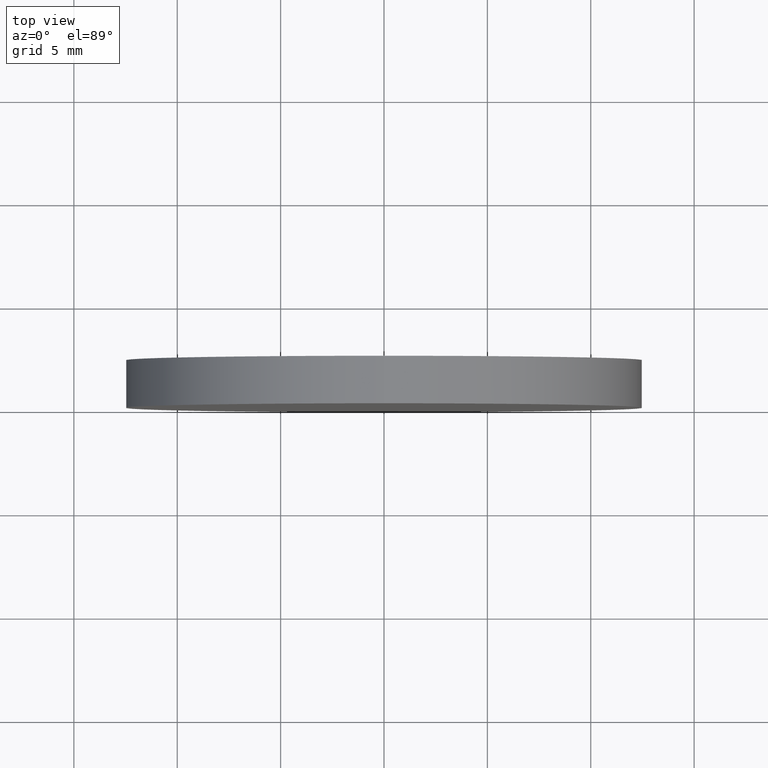
[diagram: clean part render]
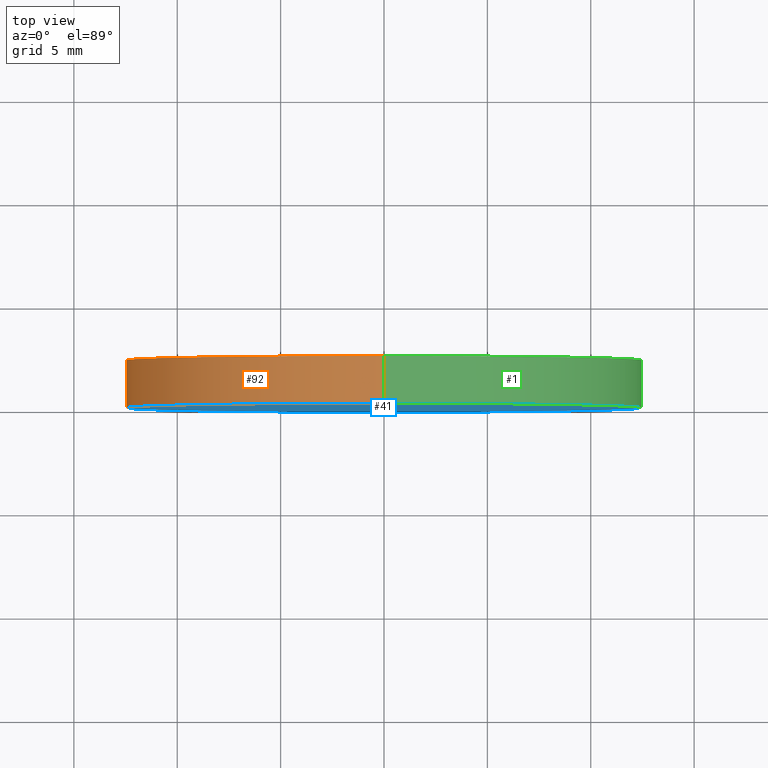
[diagram: same view with three faces highlighted in distinct colors, each labeled with its STEP entity id]
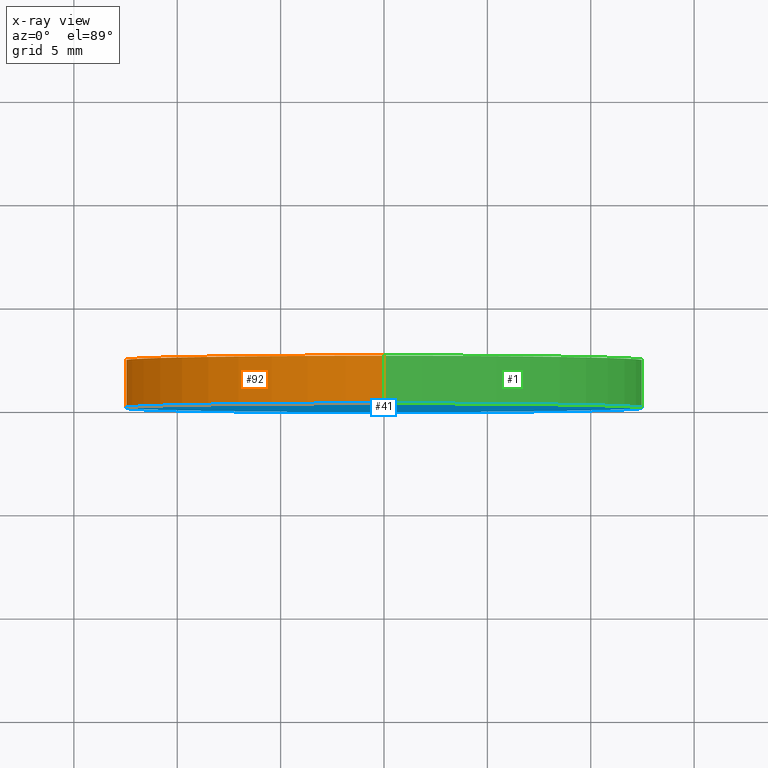
[diagram: x-ray of the same camera — body ghosted, the three highlighted faces saturated]
A machine part, top view with three faces highlighted in distinct colors.
The next image is the same camera in x-ray (body ghosted, the three faces saturated) — at least one of them is partly hidden behind the body in this view.
Their STEP definitions:

[orange] entity #92 — the highlighted cylindrical surface (partial cylindrical patch) has radius 12.5 mm, axis along (-0, -1, -0).
#14 = VERTEX_POINT ( 'NONE', #27 ) ;
#15 = EDGE_CURVE ( 'NONE', #42, #120, #85, .T. ) ;
#18 = LINE ( 'NONE', #63, #91 ) ;
#22 = ORIENTED_EDGE ( 'NONE', *, *, #15, .T. ) ;
#27 = CARTESIAN_POINT ( 'NONE',  ( 1.530808498934191500E-015, 2.299999999999999800, 12.50000000000000000 ) ) ;
#28 = VECTOR ( 'NONE', #71, 1000.000000000000000 ) ;
#32 = FACE_OUTER_BOUND ( 'NONE', #128, .T. ) ;
#42 = VERTEX_POINT ( 'NONE', #79 ) ;
#50 = DIRECTION ( 'NONE',  ( -0.0000000000000000000, -1.000000000000000000, -0.0000000000000000000 ) ) ;
#58 = CARTESIAN_POINT ( 'NONE',  ( 0.0000000000000000000, 0.0000000000000000000, -12.50000000000000000 ) ) ;
#61 = CARTESIAN_POINT ( 'NONE',  ( 1.530808498934191500E-015, 0.0000000000000000000, 12.50000000000000000 ) ) ;
#63 = CARTESIAN_POINT ( 'NONE',  ( 1.530808498934191500E-015, 2.299999999999999800, 12.50000000000000000 ) ) ;
#64 = ORIENTED_EDGE ( 'NONE', *, *, #115, .F. ) ;
#65 = DIRECTION ( 'NONE',  ( 0.0000000000000000000, 0.0000000000000000000, 1.000000000000000000 ) ) ;
#68 = EDGE_CURVE ( 'NONE', #120, #105, #75, .T. ) ;
#69 = DIRECTION ( 'NONE',  ( 0.0000000000000000000, 1.000000000000000000, 0.0000000000000000000 ) ) ;
#71 = DIRECTION ( 'NONE',  ( -0.0000000000000000000, -1.000000000000000000, -0.0000000000000000000 ) ) ;
#72 = CARTESIAN_POINT ( 'NONE',  ( 0.0000000000000000000, 2.299999999999999800, 0.0000000000000000000 ) ) ;
#75 = CIRCLE ( 'NONE', #114, 12.50000000000000000 ) ;
#79 = CARTESIAN_POINT ( 'NONE',  ( 0.0000000000000000000, 2.299999999999999800, -12.50000000000000000 ) ) ;
#81 = DIRECTION ( 'NONE',  ( 0.0000000000000000000, 0.0000000000000000000, -1.000000000000000000 ) ) ;
#83 = CARTESIAN_POINT ( 'NONE',  ( 0.0000000000000000000, 2.299999999999999800, 0.0000000000000000000 ) ) ;
#84 = EDGE_CURVE ( 'NONE', #42, #14, #113, .T. ) ;
#85 = LINE ( 'NONE', #96, #28 ) ;
#86 = AXIS2_PLACEMENT_3D ( 'NONE', #83, #97, #81 ) ;
#88 = DIRECTION ( 'NONE',  ( 0.0000000000000000000, 0.0000000000000000000, 1.000000000000000000 ) ) ;
#89 = ORIENTED_EDGE ( 'NONE', *, *, #84, .F. ) ;
#91 = VECTOR ( 'NONE', #50, 1000.000000000000000 ) ;
#92 = ADVANCED_FACE ( 'NONE', ( #32 ), #116, .T. ) ;
#96 = CARTESIAN_POINT ( 'NONE',  ( 0.0000000000000000000, 2.299999999999999800, -12.50000000000000000 ) ) ;
#97 = DIRECTION ( 'NONE',  ( -0.0000000000000000000, -1.000000000000000000, -0.0000000000000000000 ) ) ;
#100 = CARTESIAN_POINT ( 'NONE',  ( 0.0000000000000000000, 0.0000000000000000000, 0.0000000000000000000 ) ) ;
#105 = VERTEX_POINT ( 'NONE', #61 ) ;
#108 = ORIENTED_EDGE ( 'NONE', *, *, #68, .T. ) ;
#113 = CIRCLE ( 'NONE', #127, 12.50000000000000000 ) ;
#114 = AXIS2_PLACEMENT_3D ( 'NONE', #100, #130, #88 ) ;
#115 = EDGE_CURVE ( 'NONE', #14, #105, #18, .T. ) ;
#116 = CYLINDRICAL_SURFACE ( 'NONE', #86, 12.50000000000000000 ) ;
#120 = VERTEX_POINT ( 'NONE', #58 ) ;
#127 = AXIS2_PLACEMENT_3D ( 'NONE', #72, #69, #65 ) ;
#128 = EDGE_LOOP ( 'NONE', ( #64, #89, #22, #108 ) ) ;
#130 = DIRECTION ( 'NONE',  ( 0.0000000000000000000, 1.000000000000000000, 0.0000000000000000000 ) ) ;

[blue] entity #41 — the highlighted planar face has unit normal (0, 1, 0).
#5 = CARTESIAN_POINT ( 'NONE',  ( 0.0000000000000000000, 0.0000000000000000000, 0.0000000000000000000 ) ) ;
#9 = DIRECTION ( 'NONE',  ( 0.0000000000000000000, 1.000000000000000000, 0.0000000000000000000 ) ) ;
#19 = DIRECTION ( 'NONE',  ( 0.0000000000000000000, 1.000000000000000000, 0.0000000000000000000 ) ) ;
#21 = DIRECTION ( 'NONE',  ( 0.0000000000000000000, 0.0000000000000000000, 1.000000000000000000 ) ) ;
#41 = ADVANCED_FACE ( 'NONE', ( #94 ), #122, .F. ) ;
#46 = EDGE_CURVE ( 'NONE', #105, #120, #134, .T. ) ;
#58 = CARTESIAN_POINT ( 'NONE',  ( 0.0000000000000000000, 0.0000000000000000000, -12.50000000000000000 ) ) ;
#61 = CARTESIAN_POINT ( 'NONE',  ( 1.530808498934191500E-015, 0.0000000000000000000, 12.50000000000000000 ) ) ;
#67 = ORIENTED_EDGE ( 'NONE', *, *, #46, .F. ) ;
#68 = EDGE_CURVE ( 'NONE', #120, #105, #75, .T. ) ;
#70 = CARTESIAN_POINT ( 'NONE',  ( 0.0000000000000000000, 0.0000000000000000000, 0.0000000000000000000 ) ) ;
#75 = CIRCLE ( 'NONE', #114, 12.50000000000000000 ) ;
#88 = DIRECTION ( 'NONE',  ( 0.0000000000000000000, 0.0000000000000000000, 1.000000000000000000 ) ) ;
#94 = FACE_OUTER_BOUND ( 'NONE', #133, .T. ) ;
#100 = CARTESIAN_POINT ( 'NONE',  ( 0.0000000000000000000, 0.0000000000000000000, 0.0000000000000000000 ) ) ;
#101 = DIRECTION ( 'NONE',  ( 0.0000000000000000000, -0.0000000000000000000, 1.000000000000000000 ) ) ;
#102 = AXIS2_PLACEMENT_3D ( 'NONE', #70, #19, #101 ) ;
#105 = VERTEX_POINT ( 'NONE', #61 ) ;
#114 = AXIS2_PLACEMENT_3D ( 'NONE', #100, #130, #88 ) ;
#120 = VERTEX_POINT ( 'NONE', #58 ) ;
#122 = PLANE ( 'NONE',  #102 ) ;
#123 = AXIS2_PLACEMENT_3D ( 'NONE', #5, #9, #21 ) ;
#130 = DIRECTION ( 'NONE',  ( 0.0000000000000000000, 1.000000000000000000, 0.0000000000000000000 ) ) ;
#133 = EDGE_LOOP ( 'NONE', ( #140, #67 ) ) ;
#134 = CIRCLE ( 'NONE', #123, 12.50000000000000000 ) ;
#140 = ORIENTED_EDGE ( 'NONE', *, *, #68, .F. ) ;

[green] entity #1 — the highlighted cylindrical surface (partial cylindrical patch) has radius 12.5 mm, axis along (-0, -1, -0).
#1 = ADVANCED_FACE ( 'NONE', ( #109 ), #51, .T. ) ;
#2 = EDGE_CURVE ( 'NONE', #14, #42, #77, .T. ) ;
#5 = CARTESIAN_POINT ( 'NONE',  ( 0.0000000000000000000, 0.0000000000000000000, 0.0000000000000000000 ) ) ;
#9 = DIRECTION ( 'NONE',  ( 0.0000000000000000000, 1.000000000000000000, 0.0000000000000000000 ) ) ;
#12 = AXIS2_PLACEMENT_3D ( 'NONE', #90, #52, #119 ) ;
#14 = VERTEX_POINT ( 'NONE', #27 ) ;
#15 = EDGE_CURVE ( 'NONE', #42, #120, #85, .T. ) ;
#18 = LINE ( 'NONE', #63, #91 ) ;
#21 = DIRECTION ( 'NONE',  ( 0.0000000000000000000, 0.0000000000000000000, 1.000000000000000000 ) ) ;
#27 = CARTESIAN_POINT ( 'NONE',  ( 1.530808498934191500E-015, 2.299999999999999800, 12.50000000000000000 ) ) ;
#28 = VECTOR ( 'NONE', #71, 1000.000000000000000 ) ;
#34 = AXIS2_PLACEMENT_3D ( 'NONE', #57, #39, #129 ) ;
#36 = ORIENTED_EDGE ( 'NONE', *, *, #15, .F. ) ;
#39 = DIRECTION ( 'NONE',  ( 0.0000000000000000000, 1.000000000000000000, 0.0000000000000000000 ) ) ;
#40 = EDGE_LOOP ( 'NONE', ( #76, #99, #80, #36 ) ) ;
#42 = VERTEX_POINT ( 'NONE', #79 ) ;
#46 = EDGE_CURVE ( 'NONE', #105, #120, #134, .T. ) ;
#50 = DIRECTION ( 'NONE',  ( -0.0000000000000000000, -1.000000000000000000, -0.0000000000000000000 ) ) ;
#51 = CYLINDRICAL_SURFACE ( 'NONE', #12, 12.50000000000000000 ) ;
#52 = DIRECTION ( 'NONE',  ( -0.0000000000000000000, -1.000000000000000000, -0.0000000000000000000 ) ) ;
#57 = CARTESIAN_POINT ( 'NONE',  ( 0.0000000000000000000, 2.299999999999999800, 0.0000000000000000000 ) ) ;
#58 = CARTESIAN_POINT ( 'NONE',  ( 0.0000000000000000000, 0.0000000000000000000, -12.50000000000000000 ) ) ;
#61 = CARTESIAN_POINT ( 'NONE',  ( 1.530808498934191500E-015, 0.0000000000000000000, 12.50000000000000000 ) ) ;
#63 = CARTESIAN_POINT ( 'NONE',  ( 1.530808498934191500E-015, 2.299999999999999800, 12.50000000000000000 ) ) ;
#71 = DIRECTION ( 'NONE',  ( -0.0000000000000000000, -1.000000000000000000, -0.0000000000000000000 ) ) ;
#76 = ORIENTED_EDGE ( 'NONE', *, *, #2, .F. ) ;
#77 = CIRCLE ( 'NONE', #34, 12.50000000000000000 ) ;
#79 = CARTESIAN_POINT ( 'NONE',  ( 0.0000000000000000000, 2.299999999999999800, -12.50000000000000000 ) ) ;
#80 = ORIENTED_EDGE ( 'NONE', *, *, #46, .T. ) ;
#85 = LINE ( 'NONE', #96, #28 ) ;
#90 = CARTESIAN_POINT ( 'NONE',  ( 0.0000000000000000000, 2.299999999999999800, 0.0000000000000000000 ) ) ;
#91 = VECTOR ( 'NONE', #50, 1000.000000000000000 ) ;
#96 = CARTESIAN_POINT ( 'NONE',  ( 0.0000000000000000000, 2.299999999999999800, -12.50000000000000000 ) ) ;
#99 = ORIENTED_EDGE ( 'NONE', *, *, #115, .T. ) ;
#105 = VERTEX_POINT ( 'NONE', #61 ) ;
#109 = FACE_OUTER_BOUND ( 'NONE', #40, .T. ) ;
#115 = EDGE_CURVE ( 'NONE', #14, #105, #18, .T. ) ;
#119 = DIRECTION ( 'NONE',  ( 0.0000000000000000000, 0.0000000000000000000, -1.000000000000000000 ) ) ;
#120 = VERTEX_POINT ( 'NONE', #58 ) ;
#123 = AXIS2_PLACEMENT_3D ( 'NONE', #5, #9, #21 ) ;
#129 = DIRECTION ( 'NONE',  ( 0.0000000000000000000, 0.0000000000000000000, 1.000000000000000000 ) ) ;
#134 = CIRCLE ( 'NONE', #123, 12.50000000000000000 ) ;